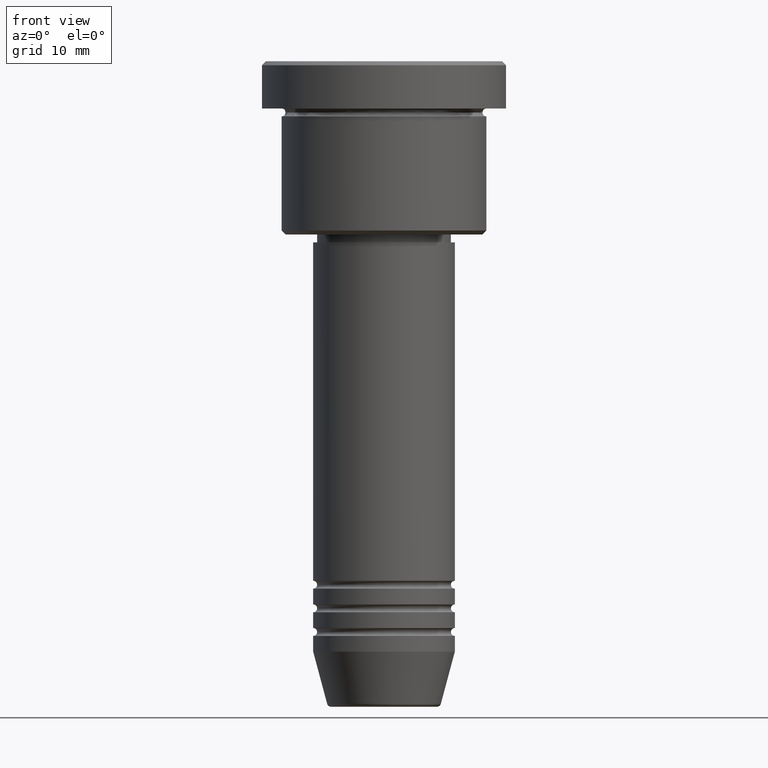
[diagram: clean part render]
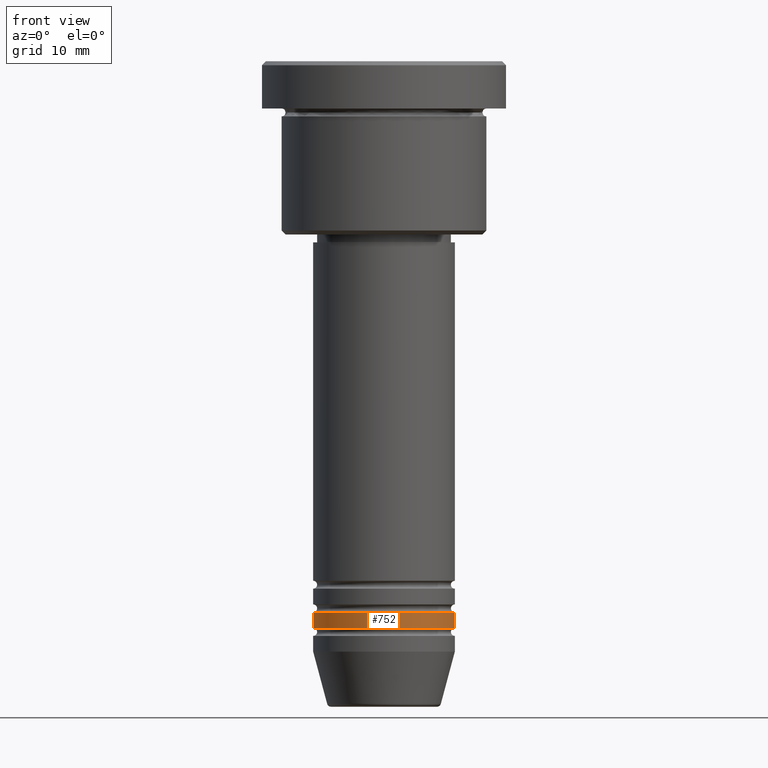
[diagram: same view with one face highlighted and labeled with its STEP entity id]
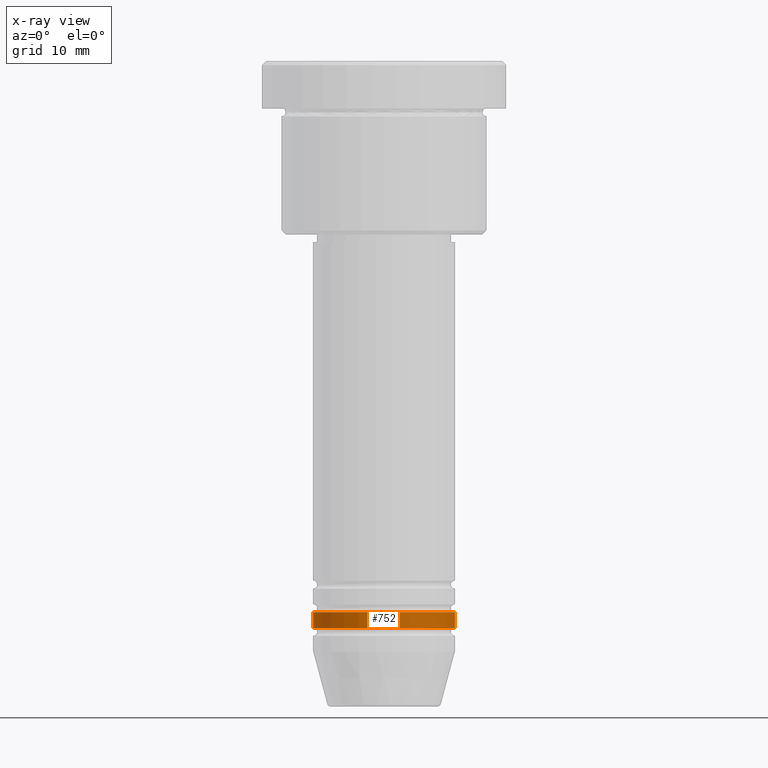
[diagram: x-ray of the same camera — body ghosted, the highlighted face saturated]
A machine part, front view. The second image highlights one B-rep face of the part: STEP entity #752.
The next image is the same camera in x-ray: the body ghosted, the highlighted face saturated — about 0% of this face is hidden behind the body in this view.
In plain terms, the highlighted cylindrical surface (partial cylindrical patch) has radius 9 mm, axis along (-0, -0, 1).
Its self-contained STEP definition (entity closure, byte-faithful):
#13 = EDGE_CURVE ( 'NONE', #1124, #973, #229, .T. ) ;
#126 = CARTESIAN_POINT ( 'NONE',  ( 0.000000000000000000, 0.000000000000000000, -69.99999999999997158 ) ) ;
#127 = VERTEX_POINT ( 'NONE', #1011 ) ;
#165 = DIRECTION ( 'NONE',  ( 1.000000000000000000, 0.000000000000000000, 0.000000000000000000 ) ) ;
#175 = DIRECTION ( 'NONE',  ( -0.000000000000000000, -0.000000000000000000, 1.000000000000000000 ) ) ;
#212 = VERTEX_POINT ( 'NONE', #600 ) ;
#229 = CIRCLE ( 'NONE', #282, 9.000000000000000000 ) ;
#282 = AXIS2_PLACEMENT_3D ( 'NONE', #870, #413, #508 ) ;
#314 = CARTESIAN_POINT ( 'NONE',  ( -9.000000000000000000, 1.102182119232617714E-15, -71.99999999999997158 ) ) ;
#323 = EDGE_CURVE ( 'NONE', #973, #212, #791, .T. ) ;
#362 = VECTOR ( 'NONE', #1163, 1000.000000000000000 ) ;
#413 = DIRECTION ( 'NONE',  ( -0.000000000000000000, -0.000000000000000000, 1.000000000000000000 ) ) ;
#419 = VECTOR ( 'NONE', #175, 1000.000000000000000 ) ;
#438 = CYLINDRICAL_SURFACE ( 'NONE', #515, 9.000000000000000000 ) ;
#508 = DIRECTION ( 'NONE',  ( 1.000000000000000000, 0.000000000000000000, 0.000000000000000000 ) ) ;
#515 = AXIS2_PLACEMENT_3D ( 'NONE', #868, #983, #165 ) ;
#529 = EDGE_CURVE ( 'NONE', #1124, #127, #1005, .T. ) ;
#562 = CARTESIAN_POINT ( 'NONE',  ( -9.000000000000000000, 1.102182119232617714E-15, 0.000000000000000000 ) ) ;
#591 = EDGE_LOOP ( 'NONE', ( #969, #671, #1099, #881 ) ) ;
#600 = CARTESIAN_POINT ( 'NONE',  ( 9.000000000000000000, 0.000000000000000000, -69.99999999999997158 ) ) ;
#654 = DIRECTION ( 'NONE',  ( -0.000000000000000000, -0.000000000000000000, 1.000000000000000000 ) ) ;
#671 = ORIENTED_EDGE ( 'NONE', *, *, #13, .T. ) ;
#752 = ADVANCED_FACE ( 'NONE', ( #1064 ), #438, .T. ) ;
#753 = DIRECTION ( 'NONE',  ( 1.000000000000000000, 0.000000000000000000, 0.000000000000000000 ) ) ;
#791 = LINE ( 'NONE', #988, #419 ) ;
#868 = CARTESIAN_POINT ( 'NONE',  ( 0.000000000000000000, 0.000000000000000000, 0.000000000000000000 ) ) ;
#870 = CARTESIAN_POINT ( 'NONE',  ( 0.000000000000000000, 0.000000000000000000, -71.99999999999997158 ) ) ;
#881 = ORIENTED_EDGE ( 'NONE', *, *, #995, .F. ) ;
#904 = AXIS2_PLACEMENT_3D ( 'NONE', #126, #654, #753 ) ;
#958 = CIRCLE ( 'NONE', #904, 9.000000000000000000 ) ;
#969 = ORIENTED_EDGE ( 'NONE', *, *, #529, .F. ) ;
#973 = VERTEX_POINT ( 'NONE', #1098 ) ;
#983 = DIRECTION ( 'NONE',  ( -0.000000000000000000, -0.000000000000000000, 1.000000000000000000 ) ) ;
#988 = CARTESIAN_POINT ( 'NONE',  ( 9.000000000000000000, 0.000000000000000000, 0.000000000000000000 ) ) ;
#995 = EDGE_CURVE ( 'NONE', #127, #212, #958, .T. ) ;
#1005 = LINE ( 'NONE', #562, #362 ) ;
#1011 = CARTESIAN_POINT ( 'NONE',  ( -9.000000000000000000, 1.102182119232617714E-15, -69.99999999999997158 ) ) ;
#1064 = FACE_OUTER_BOUND ( 'NONE', #591, .T. ) ;
#1098 = CARTESIAN_POINT ( 'NONE',  ( 9.000000000000000000, 0.000000000000000000, -71.99999999999997158 ) ) ;
#1099 = ORIENTED_EDGE ( 'NONE', *, *, #323, .T. ) ;
#1124 = VERTEX_POINT ( 'NONE', #314 ) ;
#1163 = DIRECTION ( 'NONE',  ( -0.000000000000000000, -0.000000000000000000, 1.000000000000000000 ) ) ;